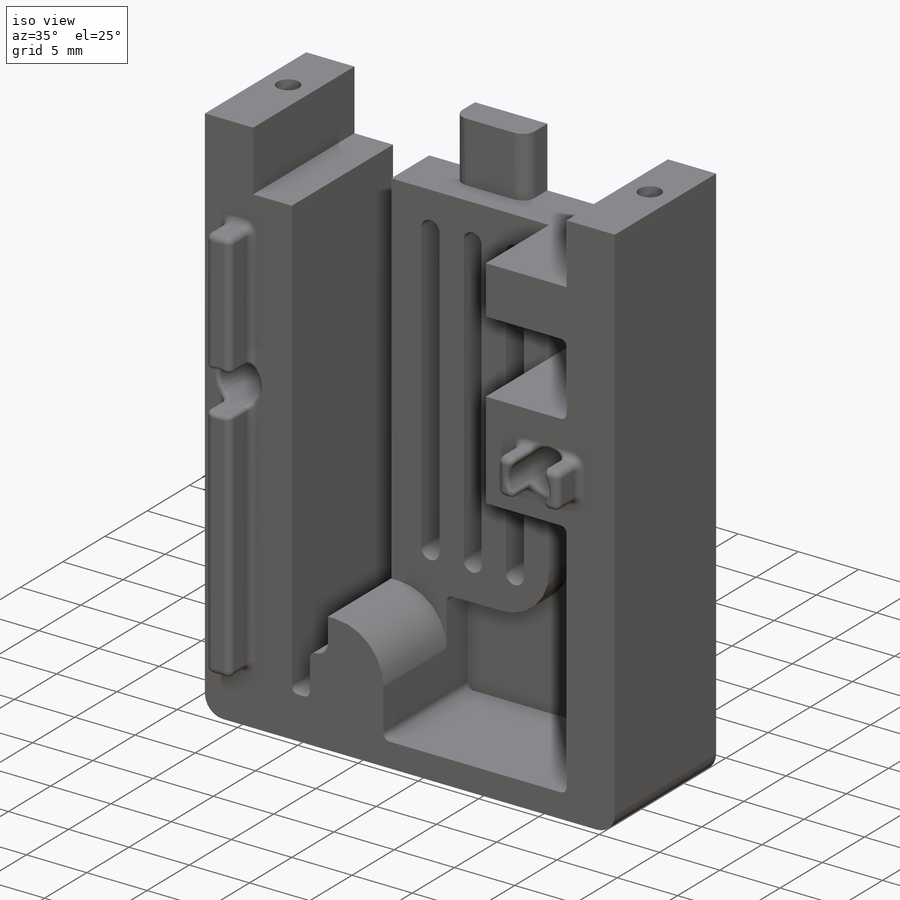
[diagram: iso view]
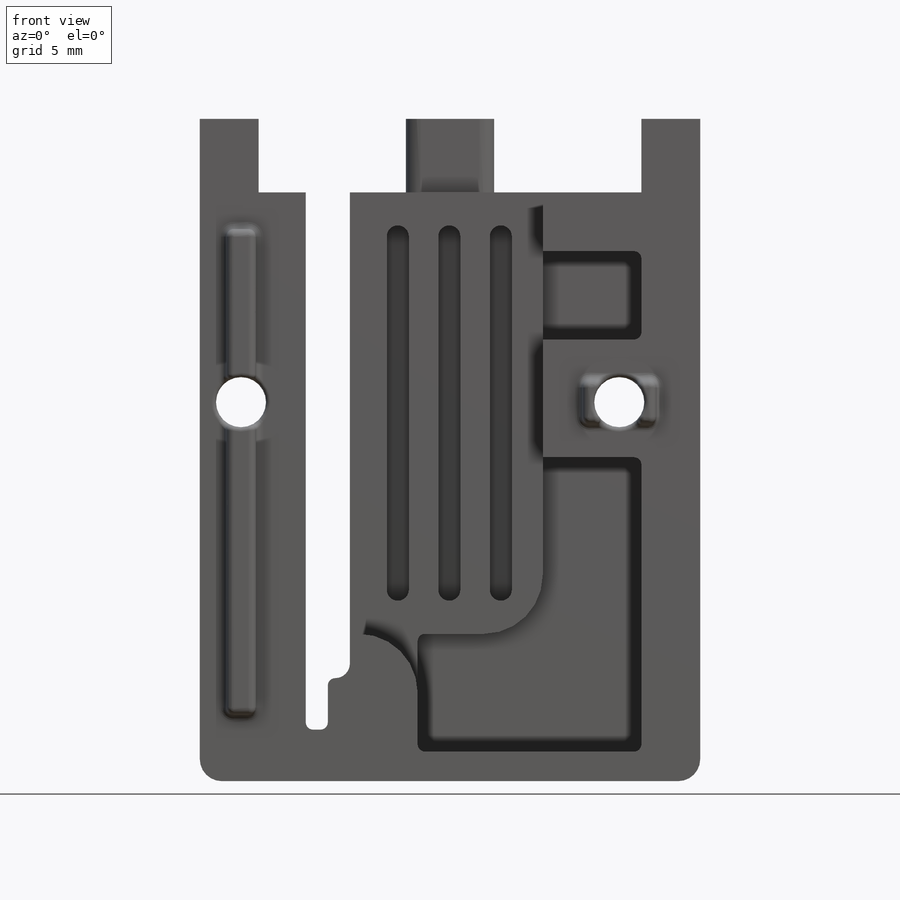
[diagram: front view]
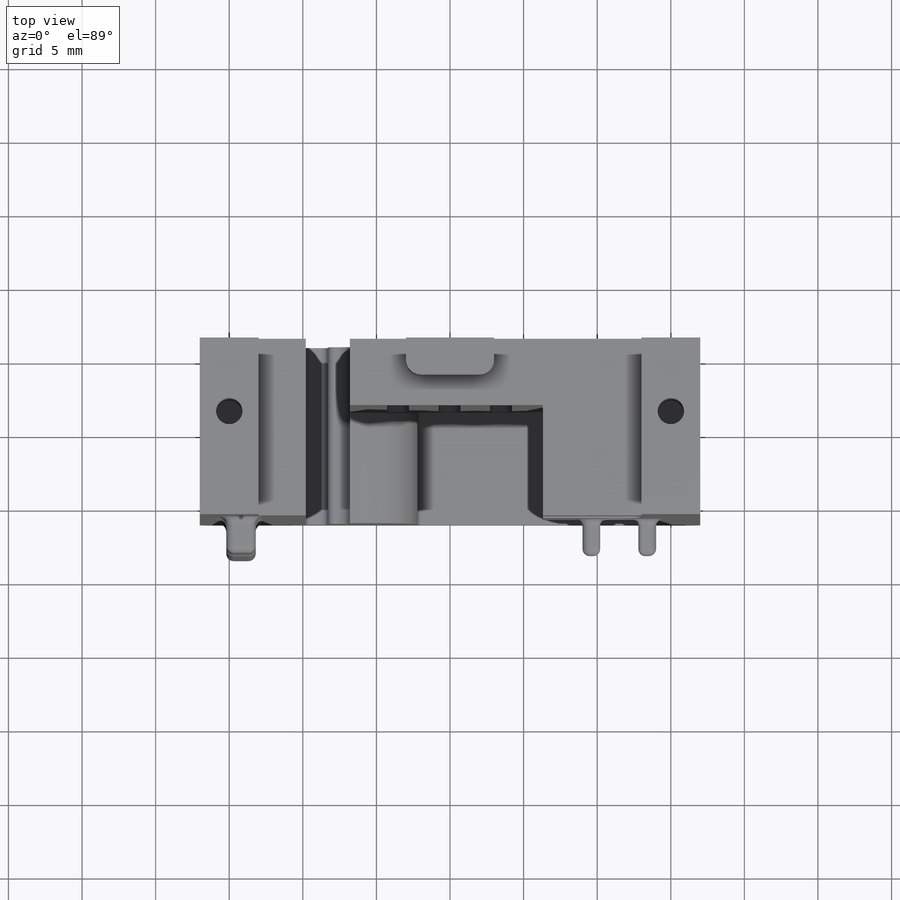
[diagram: top view]
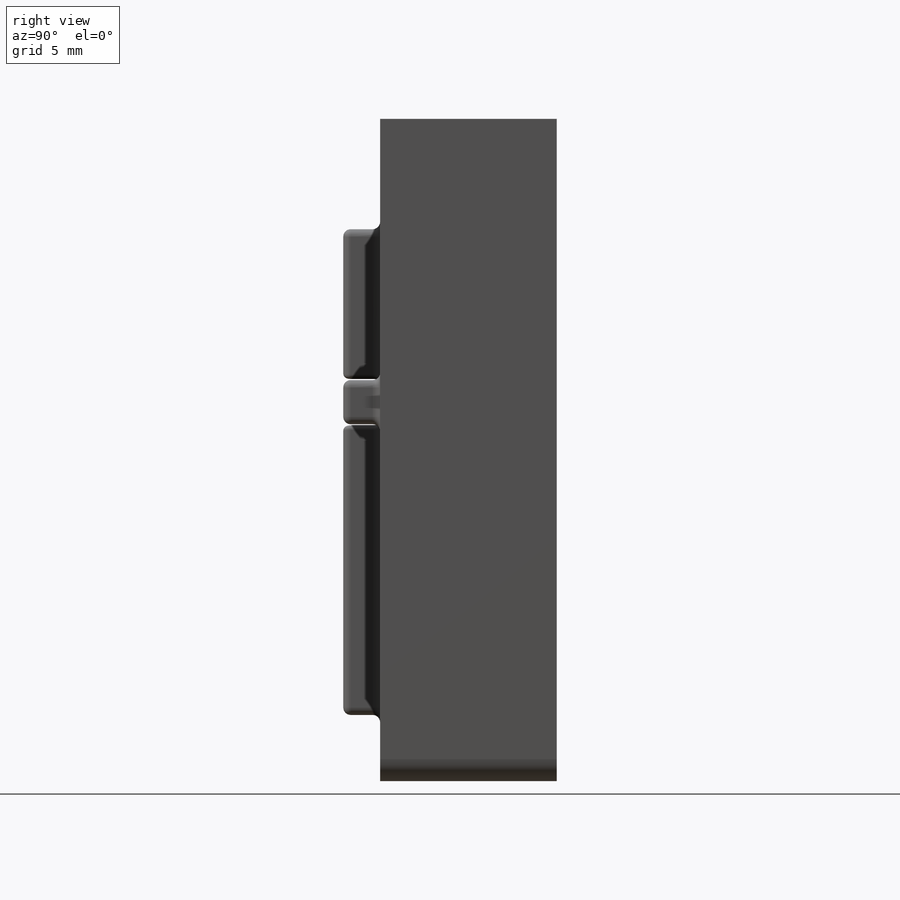
[diagram: right view]
SOLIDWORKS PART (.sldprt)
format: sldprt  version: not decoded by parser v0  size: 833,024 bytes
history: native  units: mm
features: fillet x16, sketch x12, cut_extrude x9, plane x3, extrude x3, material x1, pattern_linear x1 (+10 scaffold rows collapsed)
feature tree (55):
  scaffold x10  (default folders/planes/origin — collapsed)
  material  "Nylon 101"
  plane  "Ebene vorne"
  plane  "Ebene oben"
  plane  "Ebene rechts"
  sketch  "body-"  dims[c1.D1=~95.507903mm c1.D2=~78.876575mm c2.D1=34.0mm c2.D2=45.0mm]
  extrude  "body"  Depth=12mm
  sketch  "jig-"  dims[c1.D1=~40.149945mm c1.D2=~2.683959mm c2.D1=41.5mm c2.D2=1.5mm c2.D3=7.2mm]
  cut_extrude  "jig"  [1 undecoded]
  sketch  "jig-channel-extra"  dims[c1.D1=~32.893002mm c1.D2=~2.206238mm c2.D1=37.0mm c2.D2=1.5mm c2.D3=8.0mm c3.D1=~37.717372mm c3.D2=~2.118145mm c4.D1=1.5mm c4.D2=38.0mm]
  cut_extrude  "jig-extra-channel"  [1 undecoded]
  fillet  "Verrundung2"  Radius=0.5mm
  fillet  "Verrundung3"  Radius=1mm
  fillet  "Verrundung4"  Radius=0.5mm
  sketch  "rack"  dims[D1=10.0mm D2=5.0mm D3=5.0mm D4=10.0mm D5=4.0mm D6=4.0mm D7=6.0mm]
  cut_extrude  "rack-channel"  [1 undecoded]
  sketch  "motor-housing"  dims[c1.D1=~22.463272mm c1.D2=~13.039602mm c2.D1=30.0mm c2.D2=13.1mm c2.D3=10.7mm c2.D4=1.1mm]
  cut_extrude  "motor"  Depth=7.5mm
  sketch  "gear"  dims[D1=5.0mm D2=6.0mm]
  cut_extrude  "gear-cut"  Depth=9.5mm
  fillet  "Verrundung6"  Radius=1mm
  sketch  "bore"  dims[c1.D1=1.8mm c1.D4=~20.347442mm c1.D2=5.0mm c1.D3=2.0mm c2.D4=2.0mm c2.D5=5.0mm]
  cut_extrude  "bore-screw"  Depth=10mm
  sketch  "fit-extrusion"  dims[c1.D1=~3.274583mm c1.D2=~4.146575mm c2.D1=5.0mm c2.D2=3.0mm c2.D3=3.0mm c2.D4=24.25mm]
  extrude  "fit"  Depth=2.5mm
  fillet  "Verrundung7"  Radius=0.5mm
  fillet  "Verrundung8"  Radius=0.5mm
  fillet  "Verrundung9"  Radius=0.5mm
  sketch  "hollo-"  dims[c1.D1=~20.307733mm c1.D2=~7.432174mm c2.D1=4.0mm c2.D2=2.0mm c2.D3=18.0mm c2.D4=~5.513676mm c2.D5=~8.023707mm c3.D4=4.0mm c3.D5=6.0mm c3.D6=4.0mm c3.D7=8.0mm c3.D8=~8.502804mm c4.D7=12.0mm c4.D2=~15.202804mm]
  cut_extrude  "hollo"  Depth=10mm
  sketch  "fit2"  dims[c1.D1=~31.244177mm c1.D2=~2.659079mm c2.D1=4.5mm c2.D2=33.0mm c2.D3=1.8mm c2.D4=2.0mm]
  extrude  "fit-extrusion2"  Depth=2.5mm
  fillet  "Verrundung10"  Radius=0.5mm
  fillet  "Verrundung11"  Radius=1.5mm
  sketch  "mot-cut"  dims[D1=24.0mm D2=1.5mm D3=2.5mm]
  cut_extrude  "motor-cut"  Depth=3mm
  pattern_linear  "Lineares Muster1"  Count1=3 Count2=1 Spacing1=3.5mm Spacing2=10mm
  fillet  "Verrundung12"  Radius=4mm
  fillet  "Verrundung13"  Radius=4mm
  fillet  "Verrundung14"  Radius=0.5mm
  fillet  "Verrundung15"  Radius=0.5mm
  fillet  "Verrundung16"  Radius=0.5mm
  sketch  "screw"  dims[c1.D1=3.4mm c1.D2=3.4mm c2.D1=~3.010399mm c2.D2=~16.378754mm]
  cut_extrude  "screw-hole"  [1 undecoded]
  fillet  "Verrundung17"  Radius=0.3mm
  fillet  "Verrundung18"  Radius=0.3mm
decode coverage: 37 of 41 modeling features carry decoded parameters
note: ~ marks probable driven/reference dimensions
note: 4 parameter values undecoded
summary: no parameter record found for 4 features
note: suppression state not decoded; provenance and decode notes live in map.json
